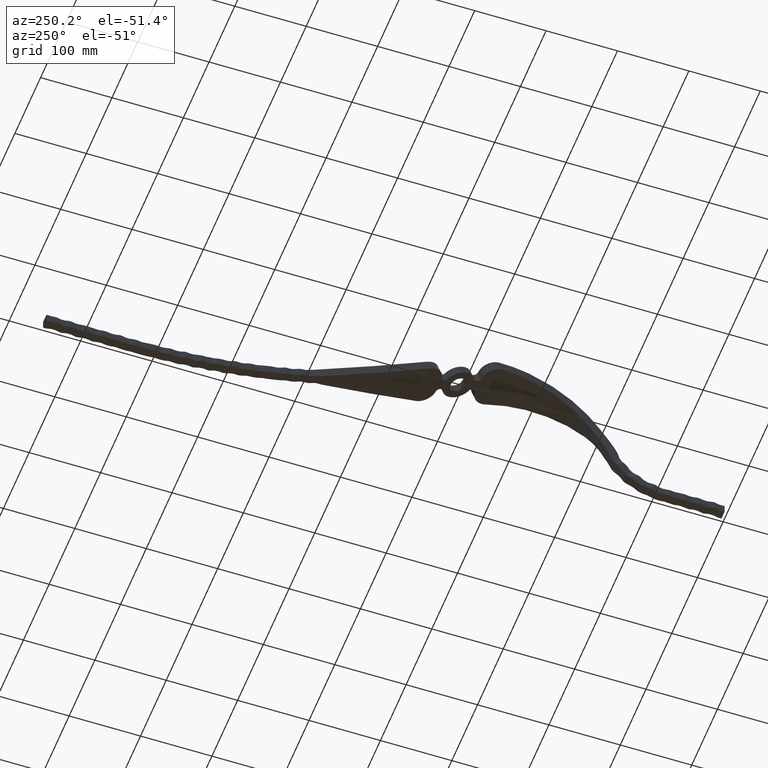
[diagram: clean part render]
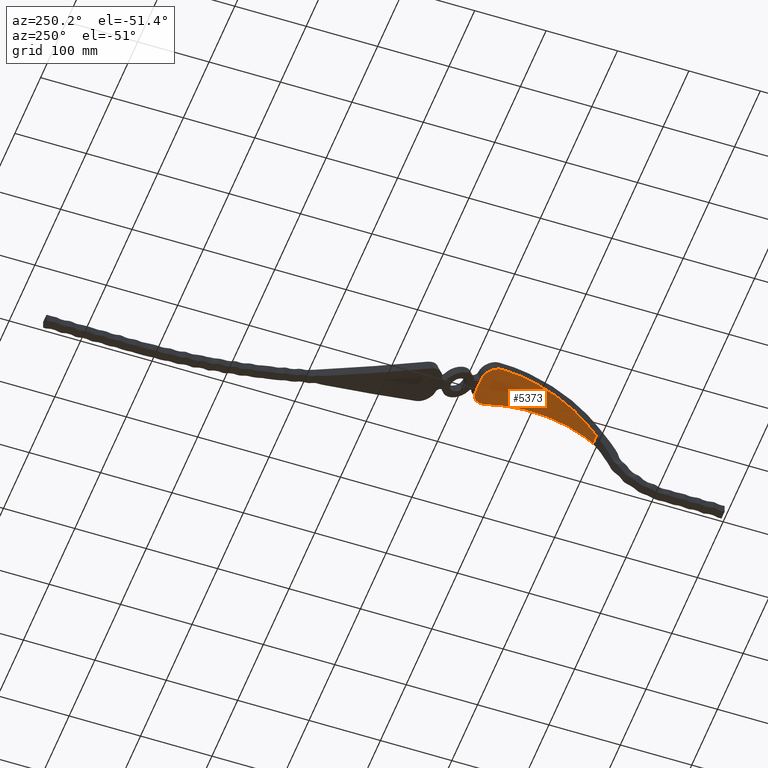
[diagram: same view with one face highlighted and labeled with its STEP entity id]
A machine part, auxiliary view. The second image highlights one B-rep face of the part: STEP entity #5373.
In plain terms, the highlighted face is a freeform B-spline surface patch.
Its self-contained STEP definition (entity closure, byte-faithful):
#7 = CARTESIAN_POINT ( 'NONE',  ( 24.31724993309228466, 261.2537407441722053, 127.4368593579245328 ) ) ;
#66 = CARTESIAN_POINT ( 'NONE',  ( -12.32621477918147868, 342.8206569268053840, 121.3343593790468589 ) ) ;
#88 = CARTESIAN_POINT ( 'NONE',  ( -12.45236372153643423, 206.7075699719948148, 102.3823249973434031 ) ) ;
#144 = CARTESIAN_POINT ( 'NONE',  ( -26.89264426617564752, 292.4422136229245552, 130.8395317990377009 ) ) ;
#302 = CARTESIAN_POINT ( 'NONE',  ( -8.940965189005979141, 190.1451500569178279, 87.49184999006710939 ) ) ;
#330 = CARTESIAN_POINT ( 'NONE',  ( -16.17936096935808266, 218.0099714029412894, 110.1341028514299865 ) ) ;
#432 = CARTESIAN_POINT ( 'NONE',  ( 10.48098481208229593, 197.0237919732014689, 94.41908805265039462 ) ) ;
#607 = CARTESIAN_POINT ( 'NONE',  ( -7.114142717403105109, 179.7688568679849368, 75.97000000000009834 ) ) ;
#677 = EDGE_CURVE ( 'NONE', #2255, #17000, #5295, .T. ) ;
#908 = ORIENTED_EDGE ( 'NONE', *, *, #1163, .T. ) ;
#1163 = EDGE_CURVE ( 'NONE', #16911, #2255, #11086, .T. ) ;
#1289 = VERTEX_POINT ( 'NONE', #5154 ) ;
#1539 = CARTESIAN_POINT ( 'NONE',  ( -24.59947083129831213, 338.2905820268657067, 122.7766965401479808 ) ) ;
#1720 = CARTESIAN_POINT ( 'NONE',  ( 18.84448733718857127, 231.5823333605534344, 117.2136652311057503 ) ) ;
#1847 = CARTESIAN_POINT ( 'NONE',  ( -21.95455957631170563, 261.2537407441722053, 127.4368593579245328 ) ) ;
#1878 = CARTESIAN_POINT ( 'NONE',  ( -26.89264426617564752, 292.4422136229245552, 130.8395317990377009 ) ) ;
#1927 = CARTESIAN_POINT ( 'NONE',  ( -31.35101102252592398, 320.5598855372135745, 127.6626271848444958 ) ) ;
#2024 = CARTESIAN_POINT ( 'NONE',  ( -21.64886793602364179, 246.4753345270457032, 123.3258282851132321 ) ) ;
#2137 = CARTESIAN_POINT ( 'NONE',  ( 9.520929086737558222, 192.6855464785289200, 90.15215642691859443 ) ) ;
#2176 = CARTESIAN_POINT ( 'NONE',  ( -18.84448733718794244, 231.5823333605534344, 117.2136652311057503 ) ) ;
#2206 = CARTESIAN_POINT ( 'NONE',  ( 12.45236372153644133, 206.7075699719948148, 102.3823249973433889 ) ) ;
#2255 = VERTEX_POINT ( 'NONE', #21655 ) ;
#2701 = CARTESIAN_POINT ( 'NONE',  ( -31.64560682233903677, 323.3050185339107543, 127.0474176813888789 ) ) ;
#2736 = CARTESIAN_POINT ( 'NONE',  ( 19.54544046587882988, 246.4753345270457032, 123.3258282851132321 ) ) ;
#2771 = CARTESIAN_POINT ( 'NONE',  ( 27.50194922071569081, 335.3673274612589807, 123.6884560383952589 ) ) ;
#2938 = CARTESIAN_POINT ( 'NONE',  ( 31.60878749042785074, 323.9990658069298206, 126.8746188755456643 ) ) ;
#3015 = CARTESIAN_POINT ( 'NONE',  ( 31.35101102252590977, 320.5598855372135745, 127.6626271848444958 ) ) ;
#3262 = CARTESIAN_POINT ( 'NONE',  ( -29.06241433426279386, 333.0966406484374147, 124.3782270485360897 ) ) ;
#3284 = CARTESIAN_POINT ( 'NONE',  ( 7.199512430012216413, 179.7688568679849936, 75.97000000000015518 ) ) ;
#3427 = CARTESIAN_POINT ( 'NONE',  ( 35.25669729819261278, 323.6391092265576503, 127.4699514244386762 ) ) ;
#3482 = CARTESIAN_POINT ( 'NONE',  ( -13.03820910590857629, 342.7970419766956525, 121.3419130806074833 ) ) ;
#3512 = CARTESIAN_POINT ( 'NONE',  ( 17.01353652521131821, 231.5823333605534344, 117.2136652311057503 ) ) ;
#3566 = CARTESIAN_POINT ( 'NONE',  ( -20.16900217031297160, 341.0099866120885963, 121.9131035286511064 ) ) ;
#3589 = CARTESIAN_POINT ( 'NONE',  ( 26.89264426617562975, 292.4422136229245552, 130.8395317990377009 ) ) ;
#3812 = CARTESIAN_POINT ( 'NONE',  ( -31.17397347281837128, 319.4626563580913512, 127.8981850494291308 ) ) ;
#3942 = VERTEX_POINT ( 'NONE', #12910 ) ;
#3987 = CARTESIAN_POINT ( 'NONE',  ( -24.31724993309147109, 261.2537407441722053, 127.4368593579245328 ) ) ;
#4224 = VERTEX_POINT ( 'NONE', #20666 ) ;
#4252 = CARTESIAN_POINT ( 'NONE',  ( 31.35101102252590977, 320.5598855372135745, 127.6626271848444958 ) ) ;
#4480 = CARTESIAN_POINT ( 'NONE',  ( 30.61682522414102436, 315.9981486119199872, 128.5901802306548234 ) ) ;
#4753 = VECTOR ( 'NONE', #7107, 1000.000000000000000 ) ;
#4756 = CARTESIAN_POINT ( 'NONE',  ( 30.02811592851267619, 331.2970651646350575, 124.9119216872577596 ) ) ;
#4803 = CARTESIAN_POINT ( 'NONE',  ( -8.129483808810444856, 186.5906453670295093, 83.76956805568629250 ) ) ;
#4831 = CARTESIAN_POINT ( 'NONE',  ( 19.84637130399551452, 341.1616386771337943, 121.8647231787649474 ) ) ;
#5013 = CARTESIAN_POINT ( 'NONE',  ( 8.129483808810393342, 186.5906453670292819, 83.76956805568600828 ) ) ;
#5093 = CARTESIAN_POINT ( 'NONE',  ( 32.17366747196435739, 306.1240177065789112, 130.0378105005089253 ) ) ;
#5117 = CARTESIAN_POINT ( 'NONE',  ( 12.32621477918149822, 342.8206569268053840, 121.3343593790468589 ) ) ;
#5154 = CARTESIAN_POINT ( 'NONE',  ( -12.32621477918147868, 342.8206569268053840, 121.3343593790468589 ) ) ;
#5288 = CARTESIAN_POINT ( 'NONE',  ( -28.70185151553929259, 333.6880921477338120, 124.2003625918184895 ) ) ;
#5295 = LINE ( 'NONE', #8824, #4753 ) ;
#5310 = CARTESIAN_POINT ( 'NONE',  ( 21.95455957631170563, 261.2537407441722053, 127.4368593579245328 ) ) ;
#5373 = ADVANCED_FACE ( 'NONE', ( #13837 ), #14859, .T. ) ;
#5385 = CARTESIAN_POINT ( 'NONE',  ( 33.60590353320763057, 334.3885140367817144, 124.0315446975274511 ) ) ;
#5543 = CARTESIAN_POINT ( 'NONE',  ( -7.199512430011969499, 179.7688568679849936, 75.97000000000015518 ) ) ;
#5576 = CARTESIAN_POINT ( 'NONE',  ( 8.940965189005902758, 190.1451500569174584, 87.49184999006671148 ) ) ;
#5623 = CARTESIAN_POINT ( 'NONE',  ( -38.76660539237217051, 342.8321880438948028, 121.3306709265175414 ) ) ;
#5757 = ORIENTED_EDGE ( 'NONE', *, *, #20932, .T. ) ;
#6018 = CARTESIAN_POINT ( 'NONE',  ( 31.17397347281836062, 319.4626563580913512, 127.8981850494291308 ) ) ;
#6055 = B_SPLINE_CURVE_WITH_KNOTS ( 'NONE', 3,
 ( #6480, #13776, #4803, #17308 ),
 .UNSPECIFIED., .F., .F.,
 ( 4, 4 ),
 ( 7.908227427538255109E-17, 0.01561274376524054638 ),
 .UNSPECIFIED. ) ;
#6096 = CARTESIAN_POINT ( 'NONE',  ( 26.89264426617562975, 292.4422136229245552, 130.8395317990377009 ) ) ;
#6193 = EDGE_CURVE ( 'NONE', #16911, #3942, #12702, .T. ) ;
#6358 = CARTESIAN_POINT ( 'NONE',  ( 17.18256277213681926, 342.0858966750222407, 121.5693580748856704 ) ) ;
#6436 = CARTESIAN_POINT ( 'NONE',  ( 21.73779620234936871, 340.2715663029366624, 122.1486729425857050 ) ) ;
#6480 = CARTESIAN_POINT ( 'NONE',  ( -7.114142717403105109, 179.7688568679849368, 75.97000000000009834 ) ) ;
#6592 = CARTESIAN_POINT ( 'NONE',  ( 29.05164487309284382, 333.0964270763026320, 124.3776681009416762 ) ) ;
#6665 = CARTESIAN_POINT ( 'NONE',  ( -33.03490780949557148, 342.8206569268053840, 121.3343593790468589 ) ) ;
#6694 = CARTESIAN_POINT ( 'NONE',  ( 7.114142717403366234, 179.7688568679849368, 75.97000000000009834 ) ) ;
#6924 = CARTESIAN_POINT ( 'NONE',  ( 8.940965189005902758, 190.1451500569174584, 87.49184999006671148 ) ) ;
#7063 = CARTESIAN_POINT ( 'NONE',  ( -17.19197222130786429, 342.0924470260306975, 121.5672655519000500 ) ) ;
#7107 = DIRECTION ( 'NONE',  ( -1.000000000000000000, 0.000000000000000000, -0.000000000000000000 ) ) ;
#7123 = EDGE_CURVE ( 'NONE', #4224, #21385, #13084, .T. ) ;
#7167 = CARTESIAN_POINT ( 'NONE',  ( -6.499999999999995559, 179.7688568679849936, 75.97000000000015518 ) ) ;
#7541 = CARTESIAN_POINT ( 'NONE',  ( -33.60590353320765189, 334.3885140367817144, 124.0315446975274511 ) ) ;
#7765 = B_SPLINE_CURVE_WITH_KNOTS ( 'NONE', 3,
 ( #7993, #16952, #2701, #15230, #17030, #12256, #8942, #19708, #23045, #23274, #16027, #3262, #5288, #21525, #10500, #17660, #23116, #8786, #1539, #21356, #15874, #3566, #10579, #17813, #23199, #12568, #7063, #10744, #21278, #10428, #3482, #66 ),
 .UNSPECIFIED., .F., .F.,
 ( 4, 2, 2, 2, 2, 2, 2, 2, 2, 2, 2, 2, 2, 2, 2, 4 ),
 ( 0.000000000000000000, 0.004214783946537187763, 0.006322175919805792486, 0.007375871906440173778, 0.008429567893074555937, 0.01264435183961208284, 0.01475174381288084889, 0.01685913578614961494, 0.01896652775941838273, 0.02107391973268714705, 0.02528870367922457507, 0.02634239966585889131, 0.02739609565249321449, 0.02950348762576185044, 0.03161087959903048639, 0.03371827157229911887 ),
 .UNSPECIFIED. ) ;
#7993 = CARTESIAN_POINT ( 'NONE',  ( -31.35101102252592398, 320.5598855372135745, 127.6626271848444958 ) ) ;
#8239 = CARTESIAN_POINT ( 'NONE',  ( 31.53485130122311730, 325.3604531239593030, 126.5354245517697791 ) ) ;
#8316 = CARTESIAN_POINT ( 'NONE',  ( 28.69405868362974132, 333.6830297261465148, 124.2014564311599969 ) ) ;
#8391 = CARTESIAN_POINT ( 'NONE',  ( 22.92745242610574152, 339.5555381171749332, 122.3767938600792320 ) ) ;
#8419 = CARTESIAN_POINT ( 'NONE',  ( 7.521310504793889962, 183.1873540613372882, 79.87887200617593919 ) ) ;
#8658 = CARTESIAN_POINT ( 'NONE',  ( 14.60735672355143322, 218.0099714029412894, 110.1341028514299865 ) ) ;
#8727 = CARTESIAN_POINT ( 'NONE',  ( 13.79245344557458353, 206.7075699719948148, 102.3823249973434031 ) ) ;
#8786 = CARTESIAN_POINT ( 'NONE',  ( -25.13553320622995813, 337.8383206394810827, 122.9191985959499505 ) ) ;
#8807 = CARTESIAN_POINT ( 'NONE',  ( 29.78675794926587983, 292.4422136229245552, 130.8395317990377009 ) ) ;
#8824 = CARTESIAN_POINT ( 'NONE',  ( -6.499999999999999112, 179.7688568679849368, 75.97000000000009834 ) ) ;
#8942 = CARTESIAN_POINT ( 'NONE',  ( -31.23035748844796800, 327.3854096095253112, 126.0046914803953939 ) ) ;
#8964 = CARTESIAN_POINT ( 'NONE',  ( -8.743634946938842134, 185.6048814979163524, 82.64318766493443036 ) ) ;
#9203 = ORIENTED_EDGE ( 'NONE', *, *, #7123, .T. ) ;
#9326 = CARTESIAN_POINT ( 'NONE',  ( -19.54544046587882988, 246.4753345270457032, 123.3258282851132321 ) ) ;
#9945 = CARTESIAN_POINT ( 'NONE',  ( 31.09008574196029429, 328.0621575939148329, 125.8225885498252268 ) ) ;
#10376 = CARTESIAN_POINT ( 'NONE',  ( 29.04763907288837643, 306.1240177065789112, 130.0378105005089253 ) ) ;
#10428 = CARTESIAN_POINT ( 'NONE',  ( -13.74475953113474702, 342.7372736164259663, 121.3610314033819293 ) ) ;
#10451 = CARTESIAN_POINT ( 'NONE',  ( 19.54544046587882988, 246.4753345270457032, 123.3258282851132321 ) ) ;
#10500 = CARTESIAN_POINT ( 'NONE',  ( -27.50899862002365381, 335.3584858430941154, 123.6911765896502118 ) ) ;
#10579 = CARTESIAN_POINT ( 'NONE',  ( -19.84790149312089014, 341.1513325263051115, 121.8679835378128473 ) ) ;
#10601 = CARTESIAN_POINT ( 'NONE',  ( 9.668874119021818814, 193.0345539711466358, 91.13862794265052969 ) ) ;
#10744 = CARTESIAN_POINT ( 'NONE',  ( -15.82887393490898731, 342.4194491311245656, 121.4626914287512562 ) ) ;
#10769 = CARTESIAN_POINT ( 'NONE',  ( -29.78675794926489573, 292.4422136229245552, 130.8395317990377009 ) ) ;
#10826 = CARTESIAN_POINT ( 'NONE',  ( -24.48646346229952897, 277.1636570379741329, 129.8933976376974897 ) ) ;
#10851 = CARTESIAN_POINT ( 'NONE',  ( -14.60735672355143677, 218.0099714029412894, 110.1341028514299865 ) ) ;
#10901 = CARTESIAN_POINT ( 'NONE',  ( -9.520929086737604408, 192.6855464785292043, 90.15215642691887865 ) ) ;
#11076 = CARTESIAN_POINT ( 'NONE',  ( -37.22248003217104895, 334.3885140367817144, 124.0315446975274511 ) ) ;
#11086 = B_SPLINE_CURVE_WITH_KNOTS ( 'NONE', 3,
 ( #6924, #5013, #8419, #6694 ),
 .UNSPECIFIED., .F., .F.,
 ( 4, 4 ),
 ( 1.398578778534940505E-17, 0.01561274376523989413 ),
 .UNSPECIFIED. ) ;
#11626 = EDGE_CURVE ( 'NONE', #17216, #3942, #19613, .T. ) ;
#11661 = CARTESIAN_POINT ( 'NONE',  ( 21.95455957631170563, 261.2537407441722053, 127.4368593579245328 ) ) ;
#11695 = CARTESIAN_POINT ( 'NONE',  ( 25.15867615462714468, 337.8676811608781350, 122.9103939297814208 ) ) ;
#11777 = CARTESIAN_POINT ( 'NONE',  ( 27.92063255656428211, 334.8246623865394440, 123.8550947566854745 ) ) ;
#12028 = CARTESIAN_POINT ( 'NONE',  ( -31.35101102252592398, 320.5598855372135745, 127.6626271848444958 ) ) ;
#12256 = CARTESIAN_POINT ( 'NONE',  ( -31.29565396605735117, 327.0464013498343547, 126.0953032878035742 ) ) ;
#12434 = CARTESIAN_POINT ( 'NONE',  ( 10.70941221601861670, 193.0345539711466358, 91.13862794265052969 ) ) ;
#12568 = CARTESIAN_POINT ( 'NONE',  ( -17.86564853292324884, 341.8944994079737967, 121.6305615795124879 ) ) ;
#12589 = CARTESIAN_POINT ( 'NONE',  ( -21.95455957631170563, 261.2537407441722053, 127.4368593579245328 ) ) ;
#12642 = CARTESIAN_POINT ( 'NONE',  ( -30.61682522414102081, 315.9981486119199872, 128.5901802306548234 ) ) ;
#12668 = CARTESIAN_POINT ( 'NONE',  ( -19.54544046587882988, 246.4753345270457032, 123.3258282851132321 ) ) ;
#12702 = B_SPLINE_CURVE_WITH_KNOTS ( 'NONE', 3,
 ( #5576, #2137, #432, #2206, #14742, #20388, #2736, #11661, #18800, #6096, #20313, #4480, #6018, #4252 ),
 .UNSPECIFIED., .F., .F.,
 ( 4, 1, 1, 1, 1, 1, 1, 1, 1, 1, 1, 4 ),
 ( 0.08556670755384174210, 0.1465803552220910355, 0.1866071682981729207, 0.2932778041623333443, 0.3733084114068835335, 0.4400092251248546305, 0.5599907814785726190, 0.6266915969174202683, 0.7067222060955645757, 0.8133929439574555387, 0.8534198705446787159, 0.8720575299412234305 ),
 .UNSPECIFIED. ) ;
#12720 = CARTESIAN_POINT ( 'NONE',  ( -10.48098481208231725, 197.0237919732016394, 94.41908805265053672 ) ) ;
#12807 = CARTESIAN_POINT ( 'NONE',  ( 8.940965189005902758, 190.1451500569174584, 87.49184999006671148 ) ) ;
#12903 = CARTESIAN_POINT ( 'NONE',  ( -13.79245344557411279, 206.7075699719948148, 102.3823249973434031 ) ) ;
#12910 = CARTESIAN_POINT ( 'NONE',  ( 31.35101102252590977, 320.5598855372135745, 127.6626271848444958 ) ) ;
#13084 = B_SPLINE_CURVE_WITH_KNOTS ( 'NONE', 3,
 ( #302, #10901, #12720, #16477, #14532, #19951, #9326, #1847, #10826, #144, #14371, #12642, #3812, #1927 ),
 .UNSPECIFIED., .F., .F.,
 ( 4, 1, 1, 1, 1, 1, 1, 1, 1, 1, 1, 4 ),
 ( 0.08556670755384450378, 0.1465803552220910355, 0.1866071682981729207, 0.2932778041623333998, 0.3733084114068835335, 0.4400092251248546305, 0.5599907814785726190, 0.6266915969174202683, 0.7067222060955645757, 0.8133929439574556497, 0.8534198705446786049, 0.8720575299412232084 ),
 .UNSPECIFIED. ) ;
#13476 = ORIENTED_EDGE ( 'NONE', *, *, #20500, .T. ) ;
#13504 = CARTESIAN_POINT ( 'NONE',  ( 26.16281222203637213, 336.9236655969553453, 123.2070835714064003 ) ) ;
#13579 = CARTESIAN_POINT ( 'NONE',  ( 31.23958481554643996, 327.3869029328409965, 126.0054602568553861 ) ) ;
#13651 = CARTESIAN_POINT ( 'NONE',  ( 15.13426498048259816, 342.5853961042772653, 121.4096219797252303 ) ) ;
#13737 = CARTESIAN_POINT ( 'NONE',  ( 18.19740856812442686, 341.7781732464035258, 121.6677356881297669 ) ) ;
#13757 = VECTOR ( 'NONE', #21255, 1000.000000000000000 ) ;
#13776 = CARTESIAN_POINT ( 'NONE',  ( -7.521310504793691898, 183.1873540613373166, 79.87887200617596761 ) ) ;
#13837 = FACE_OUTER_BOUND ( 'NONE', #16990, .T. ) ;
#14160 = CARTESIAN_POINT ( 'NONE',  ( 27.12163047136391469, 277.1636570379741329, 129.8933976376974897 ) ) ;
#14236 = CARTESIAN_POINT ( 'NONE',  ( 8.743634946939142338, 185.6048814979163524, 82.64318766493443036 ) ) ;
#14371 = CARTESIAN_POINT ( 'NONE',  ( -29.04763907288831248, 306.1240177065789112, 130.0378105005089253 ) ) ;
#14377 = EDGE_CURVE ( 'NONE', #21385, #1289, #7765, .T. ) ;
#14397 = CARTESIAN_POINT ( 'NONE',  ( -35.00000000000000000, 342.8321880438948028, 121.3306709265175414 ) ) ;
#14532 = CARTESIAN_POINT ( 'NONE',  ( -14.60735672355143677, 218.0099714029412894, 110.1341028514299865 ) ) ;
#14557 = CARTESIAN_POINT ( 'NONE',  ( -17.01353652521131821, 231.5823333605534344, 117.2136652311057503 ) ) ;
#14707 = CARTESIAN_POINT ( 'NONE',  ( -24.48646346229952897, 277.1636570379741329, 129.8933976376974897 ) ) ;
#14742 = CARTESIAN_POINT ( 'NONE',  ( 14.60735672355143322, 218.0099714029412894, 110.1341028514299865 ) ) ;
#14859 = B_SPLINE_SURFACE_WITH_KNOTS ( 'NONE', 1, 3, ( 
 ( #3284, #14236, #12434, #8727, #15827, #1720, #22992, #7, #14160, #8807, #5093, #3427, #17608, #17756 ),
 ( #21377, #16045, #10601, #19416, #8658, #3512, #10451, #5310, #23222, #3589, #10376, #16124, #5385, #17914 ),
 ( #7167, #19734, #21147, #88, #10851, #14557, #12668, #12589, #14707, #1878, #18243, #16202, #7541, #14397 ),
 ( #5543, #8964, #21866, #12903, #330, #2176, #2024, #3987, #21550, #10769, #19976, #16425, #11076, #5623 ) ),
 .UNSPECIFIED., .F., .F., .F.,
 ( 2, 1, 1, 2 ),
 ( 4, 1, 1, 1, 1, 1, 1, 1, 1, 1, 1, 4 ),
 ( -0.05380864846247814665, 0.000000000000000000, 1.000000000000000000, 1.053808648462459585 ),
 ( 0.000000000000000000, 0.1465803552220910355, 0.1866071682981729207, 0.2932778041623333443, 0.3733084114068835335, 0.4400092251248545749, 0.5599907814785726190, 0.6266915969174202683, 0.7067222060955645757, 0.8133929439574555387, 0.8534198705446786049, 1.000000000000000000 ),
 .UNSPECIFIED. ) ;
#15226 = CARTESIAN_POINT ( 'NONE',  ( 13.74286692848986924, 342.7736703588325327, 121.3493889476114589 ) ) ;
#15230 = CARTESIAN_POINT ( 'NONE',  ( -31.53590151887512860, 325.3490555952308227, 126.5383261843982581 ) ) ;
#15304 = CARTESIAN_POINT ( 'NONE',  ( 30.53606901335171742, 330.0385180404738321, 125.2756799255329838 ) ) ;
#15385 = CARTESIAN_POINT ( 'NONE',  ( 16.84248618455861290, 342.1764561689806783, 121.5403997702704402 ) ) ;
#15536 = ORIENTED_EDGE ( 'NONE', *, *, #11626, .T. ) ;
#15549 = CARTESIAN_POINT ( 'NONE',  ( 19.19792096090637656, 341.4273972586584591, 121.7798324789551998 ) ) ;
#15827 = CARTESIAN_POINT ( 'NONE',  ( 16.17936096935862622, 218.0099714029412894, 110.1341028514299865 ) ) ;
#15874 = CARTESIAN_POINT ( 'NONE',  ( -21.74993241522455634, 340.2651535530935689, 122.1507166974653700 ) ) ;
#16027 = CARTESIAN_POINT ( 'NONE',  ( -30.03415534746120130, 331.2846913292463569, 124.9155569841697826 ) ) ;
#16045 = CARTESIAN_POINT ( 'NONE',  ( 7.894093899773708678, 185.6048814979163524, 82.64318766493443036 ) ) ;
#16124 = CARTESIAN_POINT ( 'NONE',  ( 31.83111838003495464, 323.6391092265576503, 127.4699514244386762 ) ) ;
#16202 = CARTESIAN_POINT ( 'NONE',  ( -31.83111838003499372, 323.6391092265576503, 127.4699514244386762 ) ) ;
#16425 = CARTESIAN_POINT ( 'NONE',  ( -35.25669729819146880, 323.6391092265576503, 127.4699514244386762 ) ) ;
#16477 = CARTESIAN_POINT ( 'NONE',  ( -12.45236372153643423, 206.7075699719948148, 102.3823249973434031 ) ) ;
#16836 = LINE ( 'NONE', #6665, #13757 ) ;
#16911 = VERTEX_POINT ( 'NONE', #12807 ) ;
#16952 = CARTESIAN_POINT ( 'NONE',  ( -31.57306779225644533, 321.9361312408649383, 127.3671688564802196 ) ) ;
#16990 = EDGE_LOOP ( 'NONE', ( #13476, #15536, #19554, #908, #18878, #5757, #9203, #21355 ) ) ;
#17000 = VERTEX_POINT ( 'NONE', #607 ) ;
#17030 = CARTESIAN_POINT ( 'NONE',  ( -31.46262317596435665, 326.0288492112352401, 126.3637173873948285 ) ) ;
#17216 = VERTEX_POINT ( 'NONE', #5117 ) ;
#17308 = CARTESIAN_POINT ( 'NONE',  ( -8.940965189005979141, 190.1451500569178279, 87.49184999006710939 ) ) ;
#17343 = CARTESIAN_POINT ( 'NONE',  ( 28.50587503883027907, 333.9734803533637546, 124.1136745056052604 ) ) ;
#17608 = CARTESIAN_POINT ( 'NONE',  ( 37.22248003217227108, 334.3885140367817144, 124.0315446975274511 ) ) ;
#17660 = CARTESIAN_POINT ( 'NONE',  ( -26.61746349881278917, 336.3959100111036946, 123.3703312883317125 ) ) ;
#17756 = CARTESIAN_POINT ( 'NONE',  ( 38.76660539237347791, 342.8321880438948028, 121.3306709265175414 ) ) ;
#17813 = CARTESIAN_POINT ( 'NONE',  ( -19.19568296313811828, 341.4184994754926379, 121.7826656031814991 ) ) ;
#17914 = CARTESIAN_POINT ( 'NONE',  ( 35.00000000000000000, 342.8321880438948028, 121.3306709265175414 ) ) ;
#18243 = CARTESIAN_POINT ( 'NONE',  ( -29.04763907288831248, 306.1240177065789112, 130.0378105005089253 ) ) ;
#18800 = CARTESIAN_POINT ( 'NONE',  ( 24.48646346229953252, 277.1636570379741329, 129.8933976376974897 ) ) ;
#18878 = ORIENTED_EDGE ( 'NONE', *, *, #677, .T. ) ;
#18992 = CARTESIAN_POINT ( 'NONE',  ( 31.46132097434633934, 326.0379737650697507, 126.3613344080830245 ) ) ;
#19147 = CARTESIAN_POINT ( 'NONE',  ( 31.60919171635529779, 323.3151991286009661, 127.0397234162143008 ) ) ;
#19416 = CARTESIAN_POINT ( 'NONE',  ( 12.45236372153644311, 206.7075699719948148, 102.3823249973434031 ) ) ;
#19554 = ORIENTED_EDGE ( 'NONE', *, *, #6193, .F. ) ;
#19613 = B_SPLINE_CURVE_WITH_KNOTS ( 'NONE', 3,
 ( #22458, #15226, #13651, #15385, #6358, #20724, #13737, #15549, #4831, #6436, #8391, #11695, #13504, #2771, #11777, #17343, #8316, #6592, #22710, #4756, #15304, #9945, #13579, #18992, #8239, #2938, #19147, #22791, #20805, #3015 ),
 .UNSPECIFIED., .F., .F.,
 ( 4, 2, 2, 2, 2, 2, 2, 2, 2, 2, 2, 2, 2, 2, 4 ),
 ( 0.0006877216244164967773, 0.004902236309454554783, 0.005955864980714056789, 0.007009493651973557928, 0.009116750994492609644, 0.01333126567953072002, 0.01754578036456883039, 0.01965303770708795236, 0.02070666637834750815, 0.02176029504960706046, 0.02597480973464542930, 0.02808206707716452699, 0.03018932441968362121, 0.03229658176220272237, 0.03440383910472182005 ),
 .UNSPECIFIED. ) ;
#19708 = CARTESIAN_POINT ( 'NONE',  ( -31.08221205945907428, 328.0545932403824736, 125.8236815062718819 ) ) ;
#19734 = CARTESIAN_POINT ( 'NONE',  ( -7.894093899773701573, 185.6048814979163524, 82.64318766493443036 ) ) ;
#19951 = CARTESIAN_POINT ( 'NONE',  ( -17.01353652521131821, 231.5823333605534344, 117.2136652311057503 ) ) ;
#19976 = CARTESIAN_POINT ( 'NONE',  ( -32.17366747196322052, 306.1240177065789112, 130.0378105005089253 ) ) ;
#20313 = CARTESIAN_POINT ( 'NONE',  ( 29.04763907288837643, 306.1240177065789112, 130.0378105005089253 ) ) ;
#20388 = CARTESIAN_POINT ( 'NONE',  ( 17.01353652521131821, 231.5823333605534344, 117.2136652311057503 ) ) ;
#20500 = EDGE_CURVE ( 'NONE', #1289, #17216, #16836, .T. ) ;
#20666 = CARTESIAN_POINT ( 'NONE',  ( -8.940965189005979141, 190.1451500569178279, 87.49184999006710939 ) ) ;
#20724 = CARTESIAN_POINT ( 'NONE',  ( 17.85952768254124123, 341.8869362140112571, 121.6329681631986830 ) ) ;
#20805 = CARTESIAN_POINT ( 'NONE',  ( 31.46203665776671343, 321.2479913476365141, 127.5149016791838363 ) ) ;
#20932 = EDGE_CURVE ( 'NONE', #17000, #4224, #6055, .T. ) ;
#21147 = CARTESIAN_POINT ( 'NONE',  ( -9.668874119021811708, 193.0345539711466358, 91.13862794265052969 ) ) ;
#21255 = DIRECTION ( 'NONE',  ( 1.000000000000000000, -0.000000000000000000, -0.000000000000000000 ) ) ;
#21278 = CARTESIAN_POINT ( 'NONE',  ( -15.13945100112821152, 342.5484989431419081, 121.4214131759242008 ) ) ;
#21355 = ORIENTED_EDGE ( 'NONE', *, *, #14377, .T. ) ;
#21356 = CARTESIAN_POINT ( 'NONE',  ( -22.93686132392872423, 339.5486637741055915, 122.3789696441908035 ) ) ;
#21377 = CARTESIAN_POINT ( 'NONE',  ( 6.500000000000000888, 179.7688568679849936, 75.97000000000015518 ) ) ;
#21385 = VERTEX_POINT ( 'NONE', #12028 ) ;
#21525 = CARTESIAN_POINT ( 'NONE',  ( -27.92605189130866705, 334.8171357736424625, 123.8573908950766622 ) ) ;
#21550 = CARTESIAN_POINT ( 'NONE',  ( -27.12163047136300165, 277.1636570379741329, 129.8933976376974897 ) ) ;
#21655 = CARTESIAN_POINT ( 'NONE',  ( 7.114142717403366234, 179.7688568679849368, 75.97000000000009834 ) ) ;
#21866 = CARTESIAN_POINT ( 'NONE',  ( -10.70941221601825077, 193.0345539711466358, 91.13862794265052969 ) ) ;
#22458 = CARTESIAN_POINT ( 'NONE',  ( 12.32621477918149822, 342.8206569268053840, 121.3343593790468589 ) ) ;
#22710 = CARTESIAN_POINT ( 'NONE',  ( 29.22161192619040548, 332.7995122858242780, 124.4663312203015266 ) ) ;
#22791 = CARTESIAN_POINT ( 'NONE',  ( 31.53605743996596544, 321.9407498131809007, 127.3596433607583833 ) ) ;
#22992 = CARTESIAN_POINT ( 'NONE',  ( 21.64886793602436654, 246.4753345270457032, 123.3258282851132321 ) ) ;
#23045 = CARTESIAN_POINT ( 'NONE',  ( -30.99921682844938431, 328.3858016109032860, 125.7330136572227843 ) ) ;
#23116 = CARTESIAN_POINT ( 'NONE',  ( -26.14298239066782870, 336.8919837596851039, 123.2156971085254469 ) ) ;
#23199 = CARTESIAN_POINT ( 'NONE',  ( -18.86402525001436814, 341.5444537169989871, 121.7424249705979236 ) ) ;
#23222 = CARTESIAN_POINT ( 'NONE',  ( 24.48646346229953252, 277.1636570379741329, 129.8933976376974897 ) ) ;
#23274 = CARTESIAN_POINT ( 'NONE',  ( -30.54033341959315706, 330.0253388796882064, 125.2793839667655220 ) ) ;